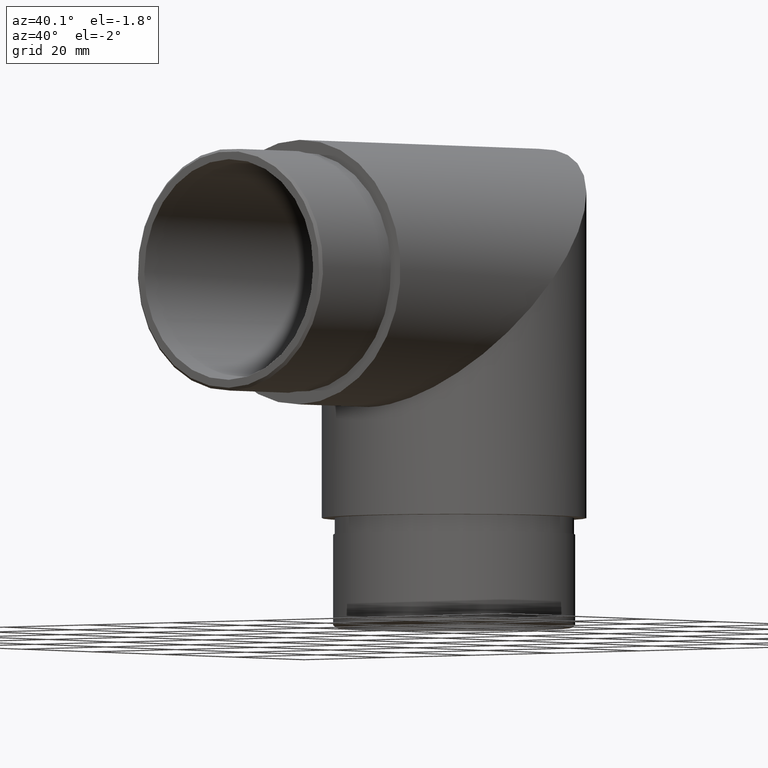
[diagram: clean part render]
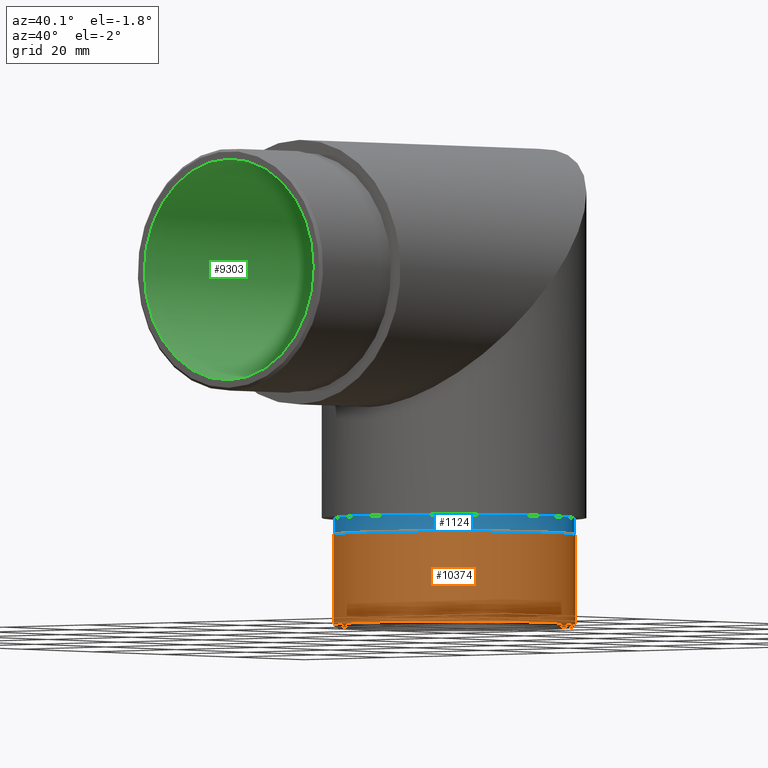
[diagram: same view with three faces highlighted in distinct colors, each labeled with its STEP entity id]
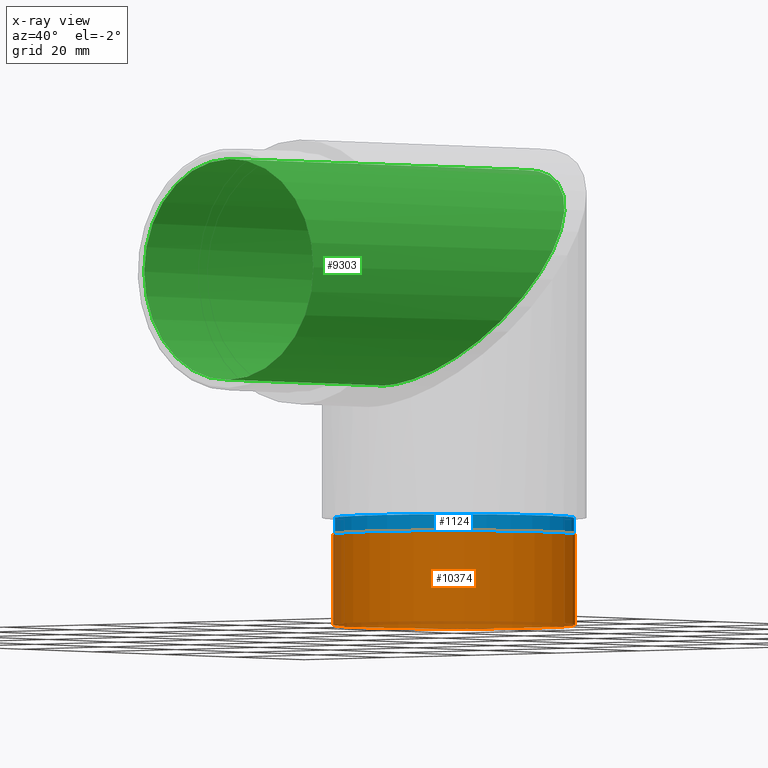
[diagram: x-ray of the same camera — body ghosted, the three highlighted faces saturated]
A machine part, auxiliary view with three faces highlighted in distinct colors.
The next image is the same camera in x-ray (body ghosted, the three faces saturated) — at least one of them is partly hidden behind the body in this view.
Their STEP definitions:

[orange] entity #10374 — the highlighted cylindrical surface (bore or boss wall) has radius 22.1 mm, axis along (-0, 0, 1).
#875 = AXIS2_PLACEMENT_3D ( 'NONE', #1103, #7871, #5322 ) ;
#1103 = CARTESIAN_POINT ( 'NONE',  ( 0.0000000000000000000, 43.84999999999978800, -63.84999999999998700 ) ) ;
#1151 = VERTEX_POINT ( 'NONE', #9793 ) ;
#1555 = DIRECTION ( 'NONE',  ( 0.0000000000000000000, 0.0000000000000000000, 1.000000000000000000 ) ) ;
#1736 = CARTESIAN_POINT ( 'NONE',  ( 0.0000000000000000000, 43.84999999999983800, -46.84999999999998700 ) ) ;
#2642 = CYLINDRICAL_SURFACE ( 'NONE', #875, 22.10000000000000100 ) ;
#3426 = FACE_OUTER_BOUND ( 'NONE', #7574, .T. ) ;
#4199 = EDGE_CURVE ( 'NONE', #8523, #8523, #6614, .T. ) ;
#4414 = AXIS2_PLACEMENT_3D ( 'NONE', #10274, #1555, #8445 ) ;
#5322 = DIRECTION ( 'NONE',  ( 0.0000000000000000000, -1.000000000000000000, 3.139770997243089700E-015 ) ) ;
#5450 = FACE_OUTER_BOUND ( 'NONE', #9765, .T. ) ;
#5469 = CIRCLE ( 'NONE', #11016, 22.10000000000000100 ) ;
#5561 = ORIENTED_EDGE ( 'NONE', *, *, #4199, .T. ) ;
#6614 = CIRCLE ( 'NONE', #4414, 22.10000000000000100 ) ;
#6776 = ORIENTED_EDGE ( 'NONE', *, *, #8014, .T. ) ;
#7574 = EDGE_LOOP ( 'NONE', ( #5561 ) ) ;
#7733 = DIRECTION ( 'NONE',  ( 0.0000000000000000000, -3.386180225106727400E-015, -1.000000000000000000 ) ) ;
#7871 = DIRECTION ( 'NONE',  ( -0.0000000000000000000, 3.386180225106727800E-015, 1.000000000000000000 ) ) ;
#8014 = EDGE_CURVE ( 'NONE', #1151, #1151, #5469, .T. ) ;
#8445 = DIRECTION ( 'NONE',  ( -1.000000000000000000, 0.0000000000000000000, 0.0000000000000000000 ) ) ;
#8523 = VERTEX_POINT ( 'NONE', #9642 ) ;
#9486 = DIRECTION ( 'NONE',  ( 0.0000000000000000000, 1.000000000000000000, -3.453748096967398700E-015 ) ) ;
#9642 = CARTESIAN_POINT ( 'NONE',  ( -22.10000000000000100, 43.84999999999978800, -63.34999999999994500 ) ) ;
#9765 = EDGE_LOOP ( 'NONE', ( #6776 ) ) ;
#9793 = CARTESIAN_POINT ( 'NONE',  ( 0.0000000000000000000, 65.94999999999984700, -46.85000000000006500 ) ) ;
#10274 = CARTESIAN_POINT ( 'NONE',  ( 0.0000000000000000000, 43.84999999999978800, -63.34999999999994500 ) ) ;
#10374 = ADVANCED_FACE ( 'NONE', ( #3426, #5450 ), #2642, .T. ) ;
#11016 = AXIS2_PLACEMENT_3D ( 'NONE', #1736, #7733, #9486 ) ;

[blue] entity #1124 — the highlighted cylindrical surface (bore or boss wall) has radius 21.9 mm, axis along (-0, 0, 1).
#51 = EDGE_CURVE ( 'NONE', #5998, #5998, #3266, .T. ) ;
#188 = DIRECTION ( 'NONE',  ( 0.0000000000000000000, 1.000000000000000000, -3.485289175478516300E-015 ) ) ;
#262 = CARTESIAN_POINT ( 'NONE',  ( 0.0000000000000000000, 65.74999999999984400, -43.85000000000007200 ) ) ;
#434 = CARTESIAN_POINT ( 'NONE',  ( 0.0000000000000000000, 43.84999999999983800, -46.84999999999999400 ) ) ;
#506 = ORIENTED_EDGE ( 'NONE', *, *, #3542, .T. ) ;
#895 = VERTEX_POINT ( 'NONE', #262 ) ;
#1124 = ADVANCED_FACE ( 'NONE', ( #5689, #8079 ), #10270, .T. ) ;
#1185 = AXIS2_PLACEMENT_3D ( 'NONE', #434, #2078, #4607 ) ;
#1881 = EDGE_LOOP ( 'NONE', ( #5829 ) ) ;
#2078 = DIRECTION ( 'NONE',  ( 0.0000000000000000000, -3.441691376337984500E-015, -1.000000000000000000 ) ) ;
#3266 = CIRCLE ( 'NONE', #1185, 21.89999999999999500 ) ;
#3346 = EDGE_LOOP ( 'NONE', ( #506 ) ) ;
#3542 = EDGE_CURVE ( 'NONE', #895, #895, #11060, .T. ) ;
#3688 = AXIS2_PLACEMENT_3D ( 'NONE', #4481, #10446, #188 ) ;
#4481 = CARTESIAN_POINT ( 'NONE',  ( 0.0000000000000000000, 43.84999999999984500, -43.84999999999999400 ) ) ;
#4607 = DIRECTION ( 'NONE',  ( 0.0000000000000000000, 1.000000000000000000, -3.485289175478517100E-015 ) ) ;
#5649 = DIRECTION ( 'NONE',  ( 0.0000000000000000000, -1.000000000000000000, 3.485289175478516300E-015 ) ) ;
#5689 = FACE_OUTER_BOUND ( 'NONE', #1881, .T. ) ;
#5829 = ORIENTED_EDGE ( 'NONE', *, *, #51, .F. ) ;
#5998 = VERTEX_POINT ( 'NONE', #6345 ) ;
#6038 = CARTESIAN_POINT ( 'NONE',  ( 0.0000000000000000000, 43.84999999999983800, -46.84999999999999400 ) ) ;
#6345 = CARTESIAN_POINT ( 'NONE',  ( 0.0000000000000000000, 65.74999999999982900, -46.85000000000007200 ) ) ;
#7065 = AXIS2_PLACEMENT_3D ( 'NONE', #6038, #10740, #5649 ) ;
#8079 = FACE_OUTER_BOUND ( 'NONE', #3346, .T. ) ;
#10270 = CYLINDRICAL_SURFACE ( 'NONE', #7065, 21.90000000000000200 ) ;
#10446 = DIRECTION ( 'NONE',  ( 0.0000000000000000000, -3.441691376337984500E-015, -1.000000000000000000 ) ) ;
#10740 = DIRECTION ( 'NONE',  ( -0.0000000000000000000, 3.441691376337984500E-015, 1.000000000000000000 ) ) ;
#11060 = CIRCLE ( 'NONE', #3688, 21.90000000000000200 ) ;

[green] entity #9303 — the highlighted cylindrical surface (bore or boss wall) has radius 20.15 mm, axis along (-0, -1, -0).
#507 = FACE_OUTER_BOUND ( 'NONE', #10272, .T. ) ;
#622 = CARTESIAN_POINT ( 'NONE',  ( 0.0000000000000000000, 112.1565150626205000, 0.0000000000000000000 ) ) ;
#1179 = CARTESIAN_POINT ( 'NONE',  ( -40.30000000000000400, 64.00000000000008500, 20.15000000000000200 ) ) ;
#1198 = EDGE_CURVE ( 'NONE', #4348, #4348, #3385, .T. ) ;
#2383 = CYLINDRICAL_SURFACE ( 'NONE', #10017, 20.15000000000000600 ) ;
#2644 = EDGE_CURVE ( 'NONE', #4497, #4497, #8938, .T. ) ;
#2934 = CARTESIAN_POINT ( 'NONE',  ( 0.0000000000000000000, 23.69999999999992100, -20.15000000000000600 ) ) ;
#3052 = DIRECTION ( 'NONE',  ( 0.0000000000000000000, 0.0000000000000000000, -1.000000000000000000 ) ) ;
#3385 = CIRCLE ( 'NONE', #8804, 20.15000000000000600 ) ;
#4348 = VERTEX_POINT ( 'NONE', #7212 ) ;
#4497 = VERTEX_POINT ( 'NONE', #4582 ) ;
#4582 = CARTESIAN_POINT ( 'NONE',  ( 0.0000000000000000000, 23.69999999999992100, -20.15000000000000600 ) ) ;
#4771 = CARTESIAN_POINT ( 'NONE',  ( 0.0000000000000000000, -20.00000000000000000, 0.0000000000000000000 ) ) ;
#5093 = ORIENTED_EDGE ( 'NONE', *, *, #1198, .T. ) ;
#5481 = CARTESIAN_POINT ( 'NONE',  ( -40.30000000000000400, 23.69999999999992100, -20.15000000000000600 ) ) ;
#5583 = CARTESIAN_POINT ( 'NONE',  ( 40.30000000000000400, 23.69999999999992100, -20.15000000000000600 ) ) ;
#6624 = DIRECTION ( 'NONE',  ( -0.0000000000000000000, -1.000000000000000000, -0.0000000000000000000 ) ) ;
#7159 = CARTESIAN_POINT ( 'NONE',  ( -2.467663300281917300E-015, 64.00000000000008500, 20.15000000000000600 ) ) ;
#7212 = CARTESIAN_POINT ( 'NONE',  ( 0.0000000000000000000, -20.00000000000000000, -20.15000000000000600 ) ) ;
#8160 = CARTESIAN_POINT ( 'NONE',  ( 40.30000000000000400, 64.00000000000008500, 20.15000000000000900 ) ) ;
#8189 = DIRECTION ( 'NONE',  ( 0.0000000000000000000, -1.000000000000000000, 0.0000000000000000000 ) ) ;
#8804 = AXIS2_PLACEMENT_3D ( 'NONE', #4771, #8189, #3052 ) ;
#8938 =( BOUNDED_CURVE ( )  B_SPLINE_CURVE ( 3, ( #2934, #5481, #1179, #7159, #8160, #5583, #9034 ),
 .UNSPECIFIED., .T., .F. ) 
 B_SPLINE_CURVE_WITH_KNOTS ( ( 4, 3, 4 ),
 ( 0.0000000000000000000, 3.141592653589793100, 6.283185307179586200 ),
 .UNSPECIFIED. ) 
 CURVE ( )  GEOMETRIC_REPRESENTATION_ITEM ( )  RATIONAL_B_SPLINE_CURVE ( ( 1.000000000000000000, 0.3333333333333333700, 0.3333333333333333700, 1.000000000000000000, 0.3333333333333333700, 0.3333333333333333700, 1.000000000000000000 ) ) 
 REPRESENTATION_ITEM ( '' )  );
#9034 = CARTESIAN_POINT ( 'NONE',  ( 0.0000000000000000000, 23.69999999999992100, -20.15000000000000600 ) ) ;
#9212 = DIRECTION ( 'NONE',  ( 0.0000000000000000000, 0.0000000000000000000, -1.000000000000000000 ) ) ;
#9303 = ADVANCED_FACE ( 'NONE', ( #10728, #507 ), #2383, .F. ) ;
#10017 = AXIS2_PLACEMENT_3D ( 'NONE', #622, #6624, #9212 ) ;
#10192 = ORIENTED_EDGE ( 'NONE', *, *, #2644, .T. ) ;
#10272 = EDGE_LOOP ( 'NONE', ( #5093 ) ) ;
#10639 = EDGE_LOOP ( 'NONE', ( #10192 ) ) ;
#10728 = FACE_OUTER_BOUND ( 'NONE', #10639, .T. ) ;